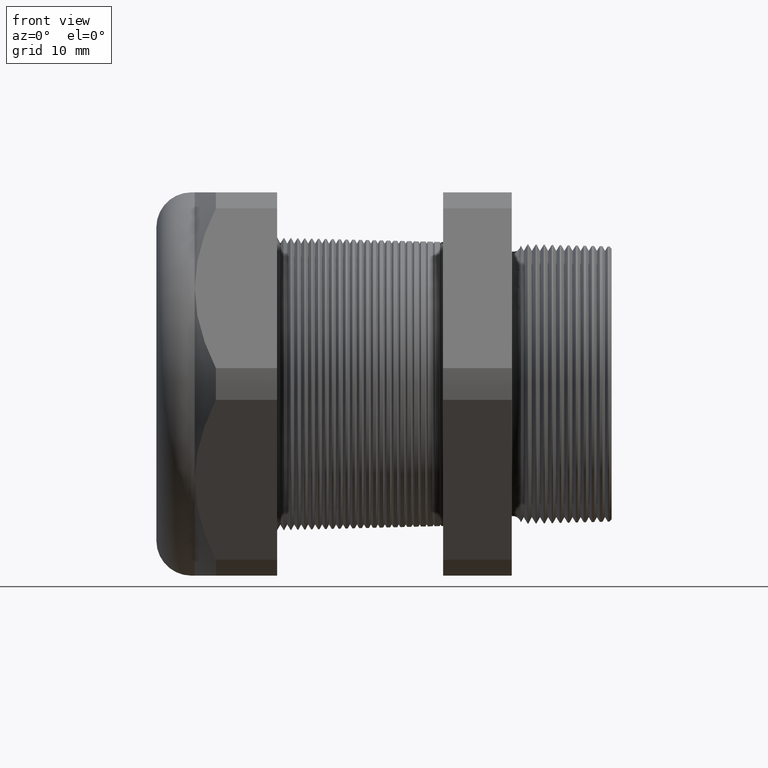
[diagram: clean part render]
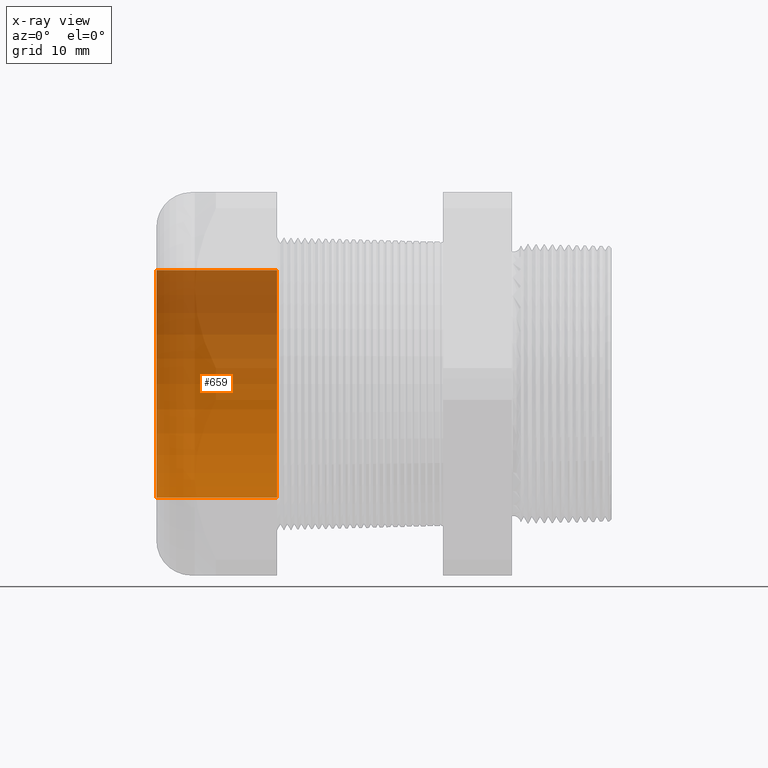
[diagram: x-ray — body ghosted, one internal face saturated and labeled with its STEP entity id]
A machine part, front view, then the same camera in x-ray: the body is ghosted and one INTERNAL B-rep face — a face not visible from any outside direction — is saturated and labeled: STEP entity #659.
In plain terms, the highlighted cylindrical surface (partial cylindrical patch) has radius 12.446 mm, axis along (1, 0, 0).
Its self-contained STEP definition (entity closure, byte-faithful):
#105 = VERTEX_POINT ( 'NONE', #2003 ) ;
#106 = EDGE_CURVE ( 'NONE', #105, #143, #2002, .T. ) ;
#114 = VERTEX_POINT ( 'NONE', #1981 ) ;
#136 = EDGE_CURVE ( 'NONE', #114, #140, #2021, .T. ) ;
#140 = VERTEX_POINT ( 'NONE', #2071 ) ;
#143 = VERTEX_POINT ( 'NONE', #2070 ) ;
#658 = EDGE_CURVE ( 'NONE', #140, #143, #3044, .T. ) ;
#659 = ADVANCED_FACE ( 'NONE', ( #3097 ), #3096, .F. ) ;
#660 = EDGE_LOOP ( 'NONE', ( #661, #662, #716, #717 ) ) ;
#661 = ORIENTED_EDGE ( 'NONE', *, *, #106, .F. ) ;
#662 = ORIENTED_EDGE ( 'NONE', *, *, #663, .F. ) ;
#663 = EDGE_CURVE ( 'NONE', #114, #105, #3095, .T. ) ;
#716 = ORIENTED_EDGE ( 'NONE', *, *, #136, .T. ) ;
#717 = ORIENTED_EDGE ( 'NONE', *, *, #658, .T. ) ;
#1981 = CARTESIAN_POINT ( 'NONE',  ( -1.839999999999999400, 0.0000000000000000000, -0.4899999999999998800 ) ) ;
#1999 = DIRECTION ( 'NONE',  ( 1.000000000000000000, 0.0000000000000000000, 0.0000000000000000000 ) ) ;
#2000 = VECTOR ( 'NONE', #1999, 39.37007874015748100 ) ;
#2001 = CARTESIAN_POINT ( 'NONE',  ( 0.0000000000000000000, 6.000769315822029800E-017, 0.4899999999999999900 ) ) ;
#2002 = LINE ( 'NONE', #2001, #2000 ) ;
#2003 = CARTESIAN_POINT ( 'NONE',  ( -1.839999999999999400, 6.000769315822029800E-017, 0.4899999999999998800 ) ) ;
#2014 = DIRECTION ( 'NONE',  ( 1.000000000000000000, 0.0000000000000000000, 0.0000000000000000000 ) ) ;
#2015 = VECTOR ( 'NONE', #2014, 39.37007874015748100 ) ;
#2016 = CARTESIAN_POINT ( 'NONE',  ( 0.0000000000000000000, 0.0000000000000000000, -0.4899999999999999900 ) ) ;
#2021 = LINE ( 'NONE', #2016, #2015 ) ;
#2070 = CARTESIAN_POINT ( 'NONE',  ( -1.320314960629920700, 0.0000000000000000000, 0.4899999999999999900 ) ) ;
#2071 = CARTESIAN_POINT ( 'NONE',  ( -1.320314960629920700, 6.000769315822029800E-017, -0.4899999999999999900 ) ) ;
#3044 = CIRCLE ( 'NONE', #3101, 0.4899999999999999900 ) ;
#3087 = DIRECTION ( 'NONE',  ( 0.0000000000000000000, 0.0000000000000000000, -1.000000000000000000 ) ) ;
#3088 = DIRECTION ( 'NONE',  ( 1.000000000000000000, 0.0000000000000000000, 0.0000000000000000000 ) ) ;
#3089 = CARTESIAN_POINT ( 'NONE',  ( -1.839999999999999400, 0.0000000000000000000, 0.0000000000000000000 ) ) ;
#3090 = AXIS2_PLACEMENT_3D ( 'NONE', #3089, #3088, #3087 ) ;
#3091 = DIRECTION ( 'NONE',  ( 0.0000000000000000000, 0.0000000000000000000, -1.000000000000000000 ) ) ;
#3092 = DIRECTION ( 'NONE',  ( 1.000000000000000000, 0.0000000000000000000, 0.0000000000000000000 ) ) ;
#3093 = CARTESIAN_POINT ( 'NONE',  ( 0.0000000000000000000, 0.0000000000000000000, 0.0000000000000000000 ) ) ;
#3094 = AXIS2_PLACEMENT_3D ( 'NONE', #3093, #3092, #3091 ) ;
#3095 = CIRCLE ( 'NONE', #3090, 0.4899999999999998800 ) ;
#3096 = CYLINDRICAL_SURFACE ( 'NONE', #3094, 0.4899999999999999900 ) ;
#3097 = FACE_OUTER_BOUND ( 'NONE', #660, .T. ) ;
#3098 = DIRECTION ( 'NONE',  ( 0.0000000000000000000, 0.0000000000000000000, -1.000000000000000000 ) ) ;
#3099 = DIRECTION ( 'NONE',  ( 1.000000000000000000, 0.0000000000000000000, 0.0000000000000000000 ) ) ;
#3100 = CARTESIAN_POINT ( 'NONE',  ( -1.320314960629920700, 0.0000000000000000000, 0.0000000000000000000 ) ) ;
#3101 = AXIS2_PLACEMENT_3D ( 'NONE', #3100, #3099, #3098 ) ;